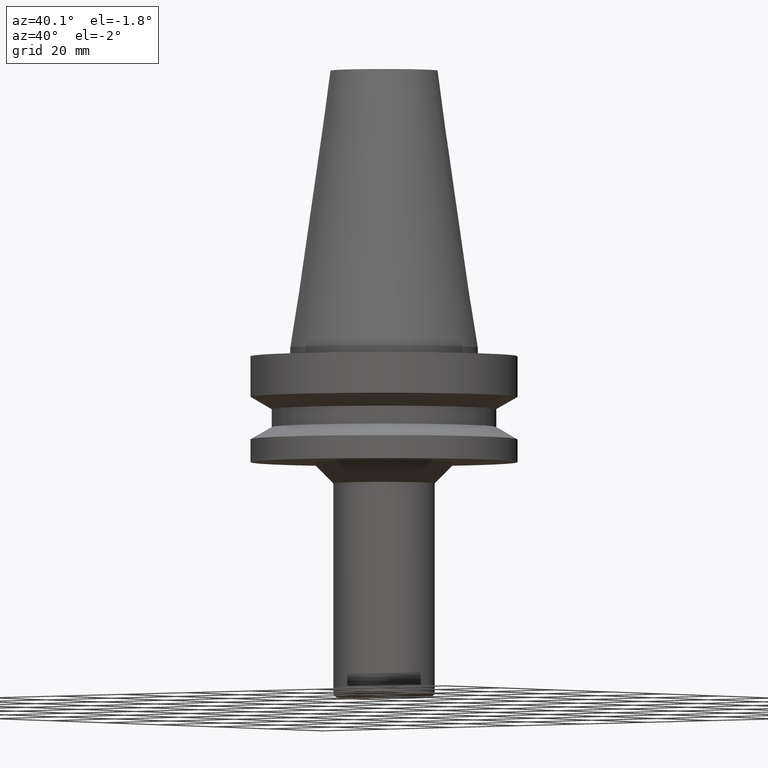
[diagram: clean part render]
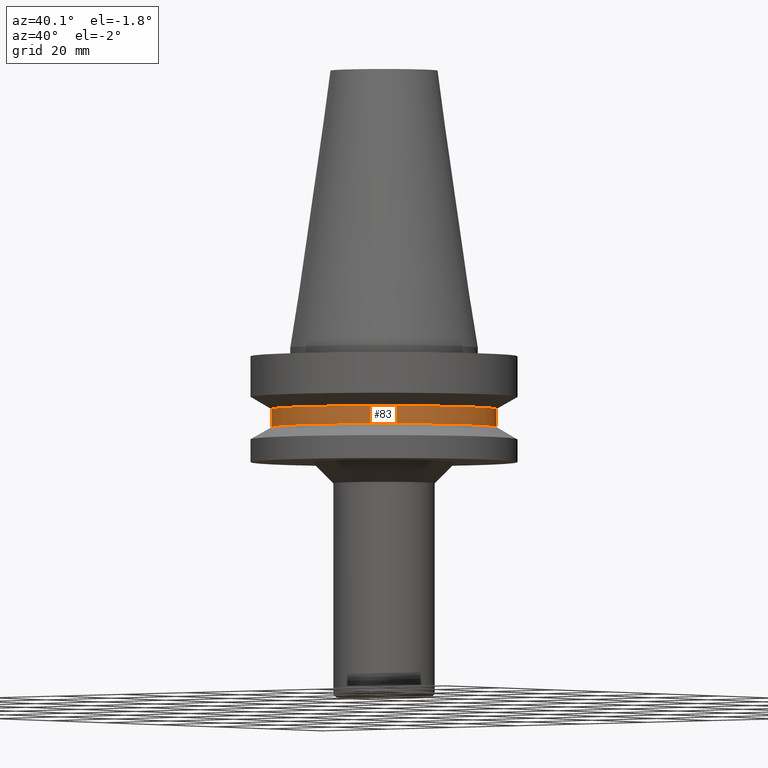
[diagram: same view with one face highlighted and labeled with its STEP entity id]
A machine part, auxiliary view. The second image highlights one B-rep face of the part: STEP entity #83.
In plain terms, the highlighted cylindrical surface (bore or boss wall) has radius 26.5 mm, axis along (0, 0, -1).
Its self-contained STEP definition (entity closure, byte-faithful):
#83=ADVANCED_FACE('',(#113,#114),#115,.T.);
#113=FACE_BOUND('',#153,.T.);
#114=FACE_BOUND('',#154,.T.);
#115=CYLINDRICAL_SURFACE('',#155,26.5000000000001);
#153=EDGE_LOOP('',(#209));
#154=EDGE_LOOP('',(#210));
#155=AXIS2_PLACEMENT_3D('',#211,#212,#213);
#209=ORIENTED_EDGE('',*,*,#247,.F.);
#210=ORIENTED_EDGE('',*,*,#246,.T.);
#211=CARTESIAN_POINT('',(1.0164568432923E-015,2.0329136865846E-015,-16.6));
#212=DIRECTION('',(6.12323399573677E-017,1.22464679914735E-016,-1.0));
#213=DIRECTION('',(-1.23259516440783E-032,1.0,1.22464679914735E-016));
#246=EDGE_CURVE('',#267,#267,#268,.T.);
#247=EDGE_CURVE('',#269,#269,#270,.T.);
#267=VERTEX_POINT('',#293);
#268=CIRCLE('',#294,26.5000000000001);
#269=VERTEX_POINT('',#295);
#270=CIRCLE('',#296,26.5000000000001);
#293=CARTESIAN_POINT('',(1.14585599171476E-015,26.5000000000001,-18.7132484649867));
#294=AXIS2_PLACEMENT_3D('',#327,#328,#329);
#295=CARTESIAN_POINT('',(8.87057694869846E-016,26.5000000000001,-14.4867515350132));
#296=AXIS2_PLACEMENT_3D('',#330,#331,#332);
#327=CARTESIAN_POINT('',(1.14585599171476E-015,2.29171198342951E-015,-18.7132484649868));
#328=DIRECTION('',(-6.12323399573677E-017,-1.22464679914735E-016,1.0));
#329=DIRECTION('',(-1.23259516440783E-032,1.0,1.22464679914735E-016));
#330=CARTESIAN_POINT('',(8.87057694869847E-016,1.77411538973969E-015,-14.4867515350132));
#331=DIRECTION('',(-6.12323399573677E-017,-1.22464679914735E-016,1.0));
#332=DIRECTION('',(-1.23259516440783E-032,1.0,1.22464679914735E-016));